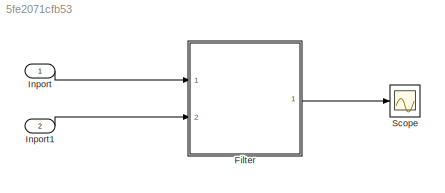
MODEL slx_5fe2071cfb53
KIND model
CONFIG AbsTol = auto
CONFIG EnableMultiTasking = off
CONFIG FixedStep = auto
CONFIG MaxStep = auto
CONFIG MinStep = auto
CONFIG RelTol = 1e-3
CONFIG SampleTimeConstraint = Unconstrained
CONFIG SolverName = VariableStepAuto
CONFIG StartTime = 0.0
CONFIG StopTime = 10.0
BLOCK [ModelReference] Filter
  ModelNameDialog = Filter_Reference
  ModelReferenceVersion = 1.2
  Ports = [2, 1]
BLOCK [Inport] Inport
BLOCK [Inport] Inport1
  Port = 2
BLOCK [Scope] Scope
  Floating = off
  NumInputPorts = 1
  Ports = [1]
  ScopeSpecificationString = Simulink.scopes.TimeScopeBlockCfg('CurrentConfiguration', extmgr.ConfigurationSet(extmgr.Configuration('Core','General UI',true),extmgr.Configuration('Core','Source UI',true),extmgr.Configuration('Sources','WiredSimulink',true),extmgr.Configuration('Visuals','Time Domain',true,'SerializedDisplays',{struct('MinYLimReal','-5.94031','MaxYLimReal','5.46722','YLabelReal','','MinYLimMag','0.00000','MaxY...<+1324ch>
LINE Filter:1 -> Scope:1
LINE Inport1:1 -> Filter:2
LINE Inport:1 -> Filter:1
